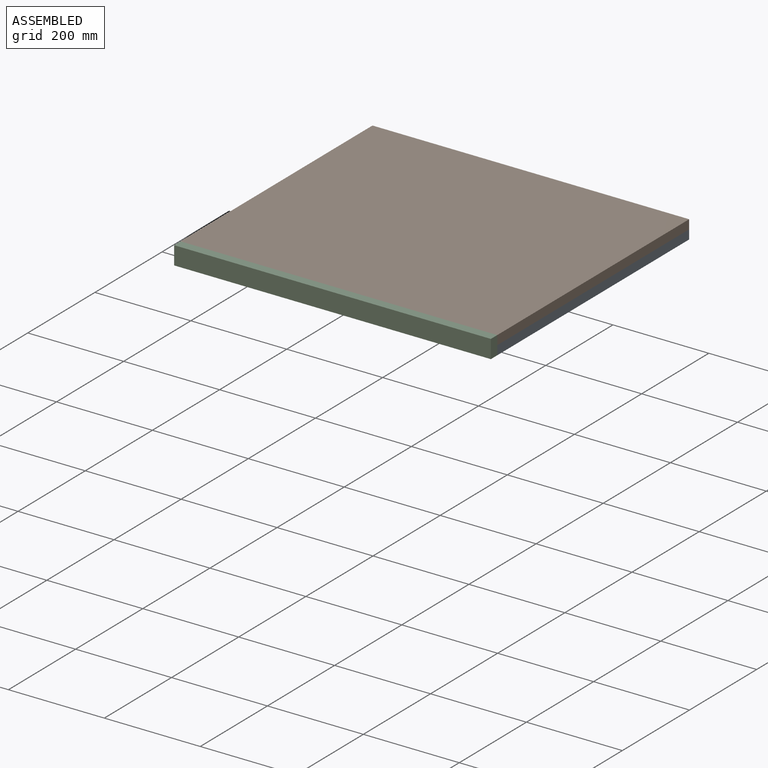
[diagram: assembled view]
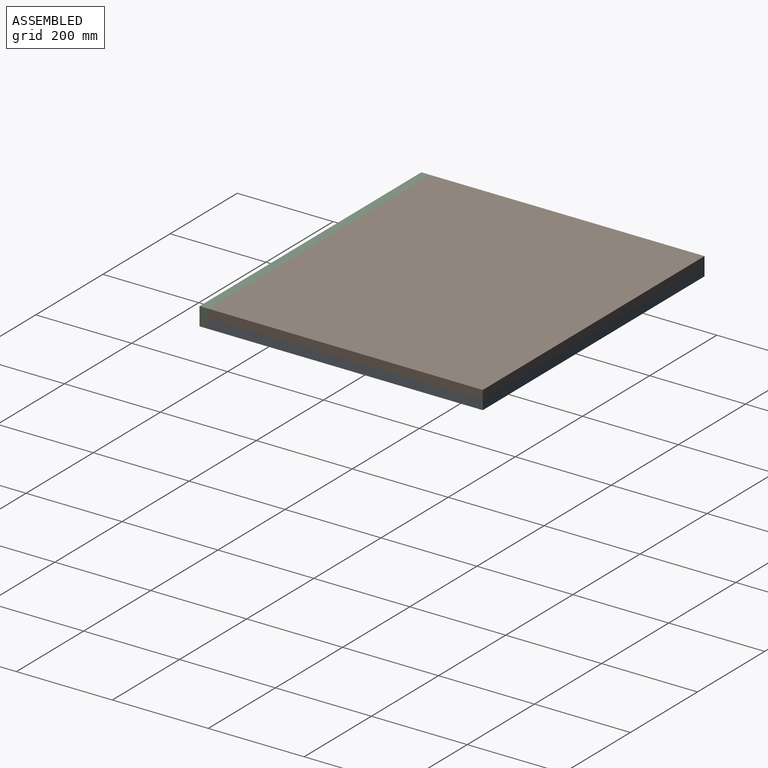
[diagram: assembled view, second angle]
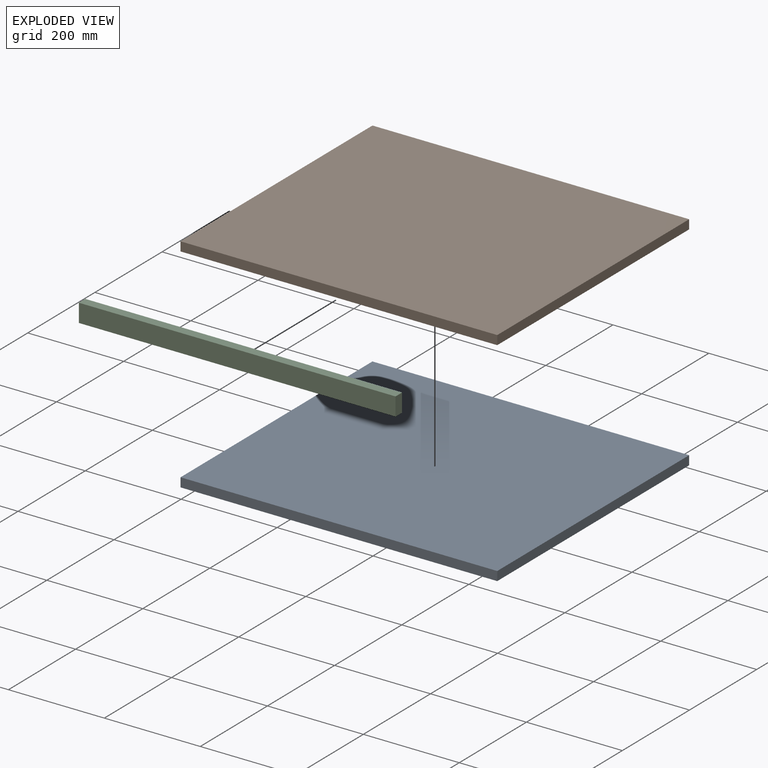
[diagram: exploded view]
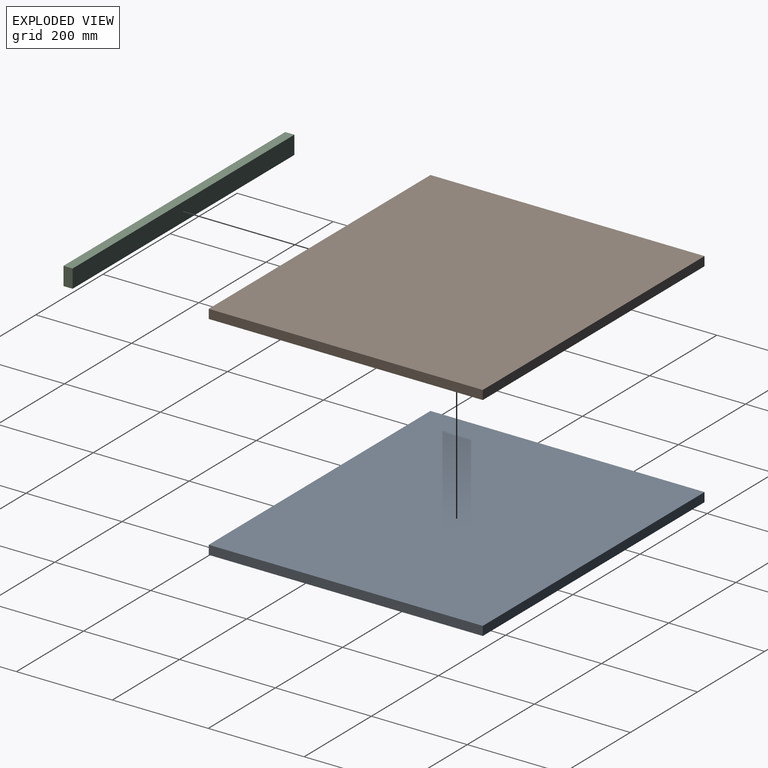
[diagram: exploded view, second angle]
ASSEMBLY  parts=3 mates=2
PART A: 6 faces, bbox 660.4x571.5x19.1 mm
  f0: plane 660.4x19.05mm, normal (0,1,0), area 12580.6mm2, adj f1,f3,f4,f5
  f1: plane 571.5x19.05mm, normal (-1,0,0), area 10887.1mm2, adj f0,f2,f4,f5
  f2: plane 660.4x19.05mm, normal (0,-1,0), area 12580.6mm2, adj f1,f3,f4,f5
  f3: plane 571.5x19.05mm, normal (1,0,0), area 10887.1mm2, adj f0,f2,f4,f5
  f4: plane 660.4x571.5mm, normal (0,0,1), area 377418.6mm2, adj f0,f1,f2,f3
  f5: plane 660.4x571.5mm, normal (0,0,-1), area 377418.6mm2, adj f0,f1,f2,f3
PART B: same geometry as A
PART C: 6 faces, bbox 660.4x38.1x19.1 mm
  f0: plane 660.4x19.05mm, normal (0,1,0), area 12580.6mm2, adj f1,f3,f4,f5
  f1: plane 38.1x19.05mm, normal (-1,0,0), area 725.8mm2, adj f0,f2,f4,f5
  f2: plane 660.4x19.05mm, normal (0,-1,0), area 12580.6mm2, adj f1,f3,f4,f5
  f3: plane 38.1x19.05mm, normal (1,0,0), area 725.8mm2, adj f0,f2,f4,f5
  f4: plane 660.4x38.1mm, normal (0,0,1), area 25161.2mm2, adj f0,f1,f2,f3
  f5: plane 660.4x38.1mm, normal (0,0,-1), area 25161.2mm2, adj f0,f1,f2,f3
PLACE A t=(434.17,-861.36,8.47)mm
PLACE B rot(axis=(1,0,0),180deg) t=(434.17,-537.27,46.57)mm
PLACE C rot(axis=(-1,0,0),90deg) t=(318.83,-1004.11,-680.08)mm
MATE fastened B.f4 <-> A.f4  axis (0,0,-1) through (-1281.52,-699.31,27.52)mm
MATE fastened C.f4 <-> B.f0  axis (0,1,0) through (-951.32,-985.06,46.57)mm
